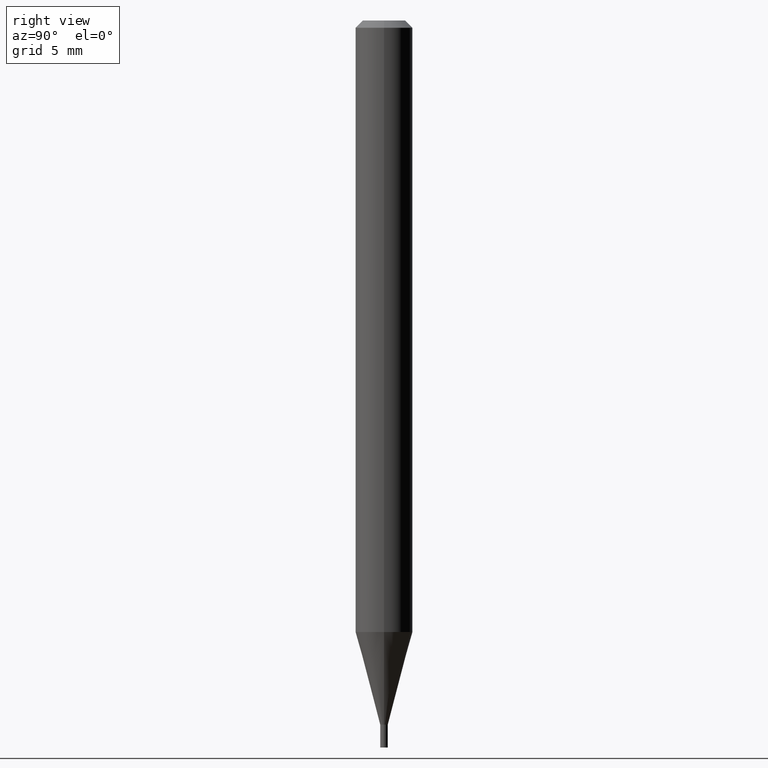
[diagram: clean part render]
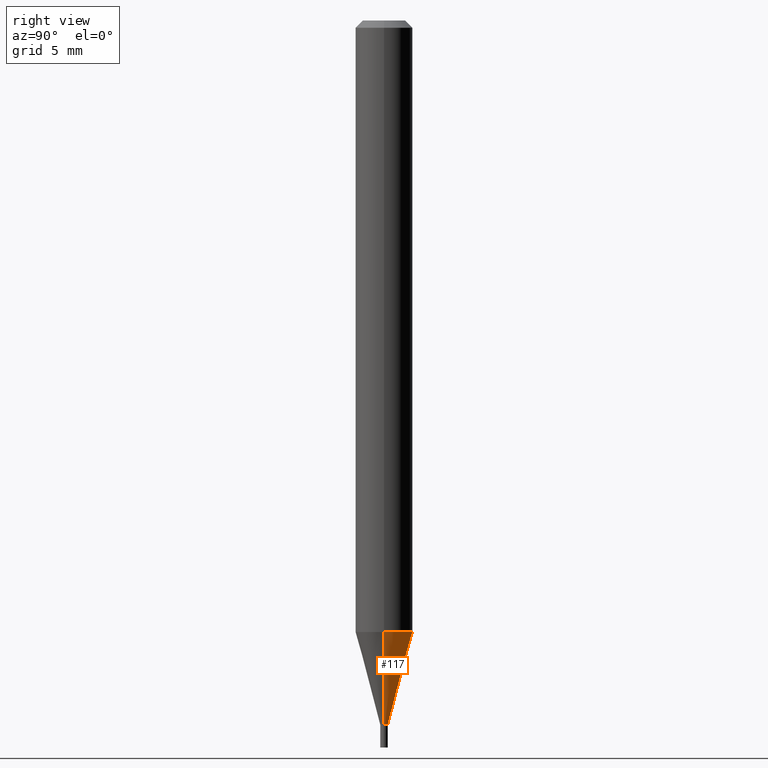
[diagram: same view with one face highlighted and labeled with its STEP entity id]
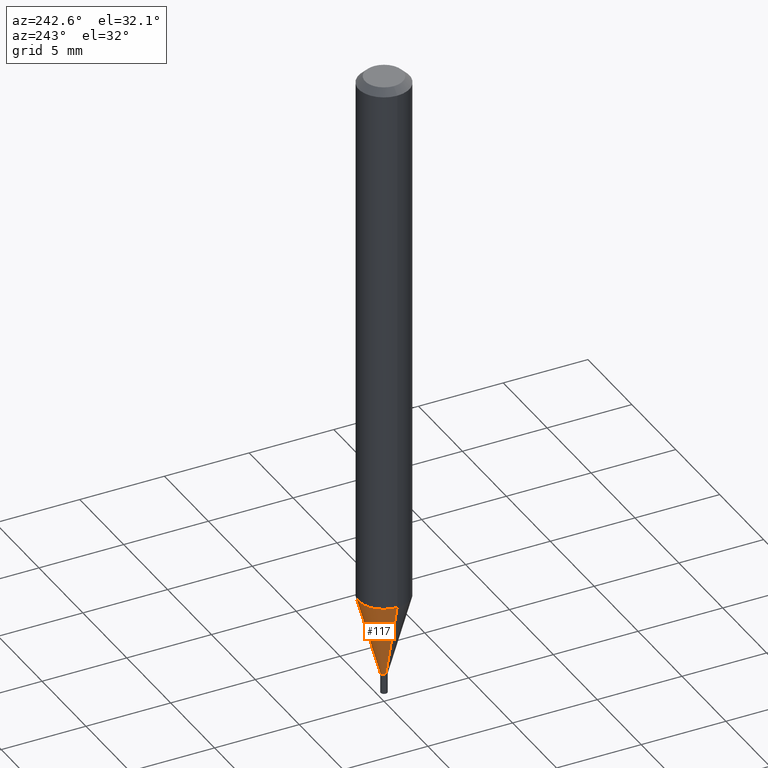
[diagram: same view with one face highlighted and labeled with its STEP entity id]
A machine part, right view. The second image highlights one B-rep face of the part: STEP entity #117.
A second angle (auxiliary view) of the same face is appended — the face is thin or edge-on in the first view.
In plain terms, the highlighted conical surface has half-angle 15 deg.
Its self-contained STEP definition (entity closure, byte-faithful):
#5 = VERTEX_POINT ( 'NONE', #264 ) ;
#23 = EDGE_LOOP ( 'NONE', ( #438, #64, #259, #303 ) ) ;
#64 = ORIENTED_EDGE ( 'NONE', *, *, #68, .T. ) ;
#68 = EDGE_CURVE ( 'NONE', #153, #157, #309, .T. ) ;
#89 = VERTEX_POINT ( 'NONE', #206 ) ;
#97 = CARTESIAN_POINT ( 'NONE',  ( 3.552777081625766969E-29, -5.072424089071322718E-15, -1.452800000000000091 ) ) ;
#99 = DIRECTION ( 'NONE',  ( 1.000000000000000000, -6.982962677686273021E-15, 0.000000000000000000 ) ) ;
#117 = ADVANCED_FACE ( 'NONE', ( #281 ), #393, .T. ) ;
#153 = VERTEX_POINT ( 'NONE', #412 ) ;
#157 = VERTEX_POINT ( 'NONE', #405 ) ;
#201 = DIRECTION ( 'NONE',  ( 1.000000000000000000, -6.982962677686273021E-15, 0.000000000000000000 ) ) ;
#206 = CARTESIAN_POINT ( 'NONE',  ( 0.05904999999999999138, -4.817612284776347072E-15, -1.261718998652473944 ) ) ;
#223 = DIRECTION ( 'NONE',  ( -2.445468806185136597E-29, 3.491481338843145583E-15, 1.000000000000000000 ) ) ;
#224 = AXIS2_PLACEMENT_3D ( 'NONE', #234, #223, #201 ) ;
#234 = CARTESIAN_POINT ( 'NONE',  ( 3.552777081625766969E-29, -5.072424089071322718E-15, -1.452800000000000091 ) ) ;
#235 = EDGE_CURVE ( 'NONE', #5, #153, #313, .T. ) ;
#248 = DIRECTION ( 'NONE',  ( -2.445468806185136597E-29, 3.491481338843145583E-15, 1.000000000000000000 ) ) ;
#258 = LINE ( 'NONE', #305, #379 ) ;
#259 = ORIENTED_EDGE ( 'NONE', *, *, #364, .F. ) ;
#263 = DIRECTION ( 'NONE',  ( 1.000000000000000000, -6.982962677686273021E-15, 0.000000000000000000 ) ) ;
#264 = CARTESIAN_POINT ( 'NONE',  ( 0.007849999999999921277, -5.127240346091159508E-15, -1.452800000000000091 ) ) ;
#278 = VECTOR ( 'NONE', #458, 39.37007874015747433 ) ;
#280 = EDGE_CURVE ( 'NONE', #5, #89, #258, .T. ) ;
#281 = FACE_OUTER_BOUND ( 'NONE', #23, .T. ) ;
#284 = AXIS2_PLACEMENT_3D ( 'NONE', #97, #248, #99 ) ;
#294 = DIRECTION ( 'NONE',  ( -2.445468806185136597E-29, 3.491481338843145583E-15, 1.000000000000000000 ) ) ;
#299 = CARTESIAN_POINT ( 'NONE',  ( 3.085494453375771234E-29, -4.405268338658972941E-15, -1.261718998652473944 ) ) ;
#303 = ORIENTED_EDGE ( 'NONE', *, *, #280, .F. ) ;
#305 = CARTESIAN_POINT ( 'NONE',  ( 0.007849999999999921277, -5.127240346091159508E-15, -1.452800000000000091 ) ) ;
#309 = LINE ( 'NONE', #349, #278 ) ;
#313 = CIRCLE ( 'NONE', #224, 0.007849999999999921277 ) ;
#321 = CIRCLE ( 'NONE', #422, 0.05904999999999999832 ) ;
#349 = CARTESIAN_POINT ( 'NONE',  ( -0.007849999999999921277, -5.016646484314155474E-15, -1.452800000000000091 ) ) ;
#364 = EDGE_CURVE ( 'NONE', #89, #157, #321, .T. ) ;
#379 = VECTOR ( 'NONE', #450, 39.37007874015747433 ) ;
#393 = CONICAL_SURFACE ( 'NONE', #284, 0.007849999999999921277, 0.2617993877991501295 ) ;
#405 = CARTESIAN_POINT ( 'NONE',  ( -0.05904999999999999138, -3.985692853192634237E-15, -1.261718998652473944 ) ) ;
#412 = CARTESIAN_POINT ( 'NONE',  ( -0.007849999999999921277, -4.501169668753394461E-15, -1.452800000000000091 ) ) ;
#422 = AXIS2_PLACEMENT_3D ( 'NONE', #299, #294, #263 ) ;
#438 = ORIENTED_EDGE ( 'NONE', *, *, #235, .T. ) ;
#450 = DIRECTION ( 'NONE',  ( 0.2588190451025214611, 1.565188264969621573E-15, 0.9659258262890682012 ) ) ;
#458 = DIRECTION ( 'NONE',  ( -0.2588190451025214611, 5.211531920934551042E-15, 0.9659258262890682012 ) ) ;